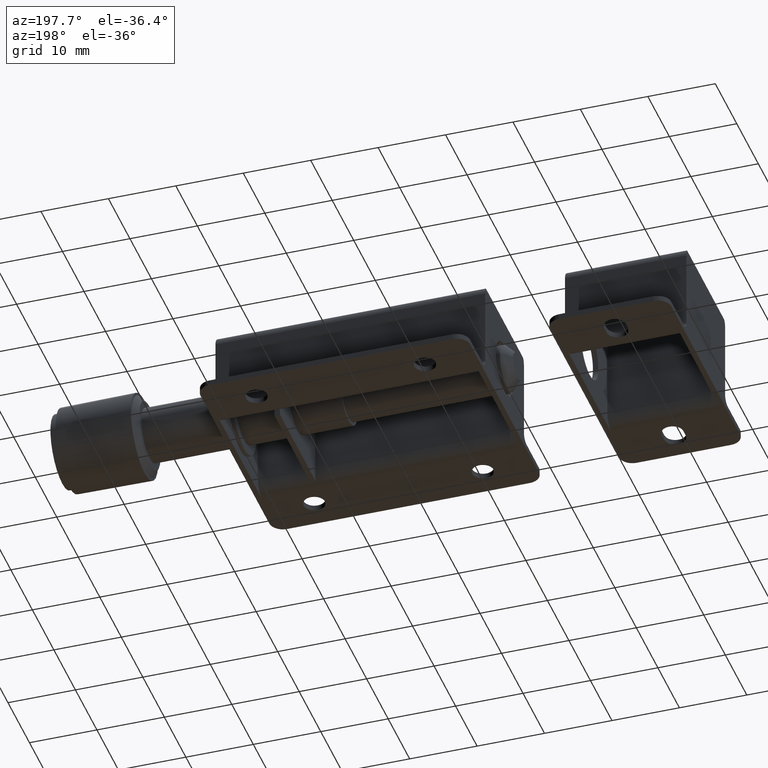
[diagram: clean part render]
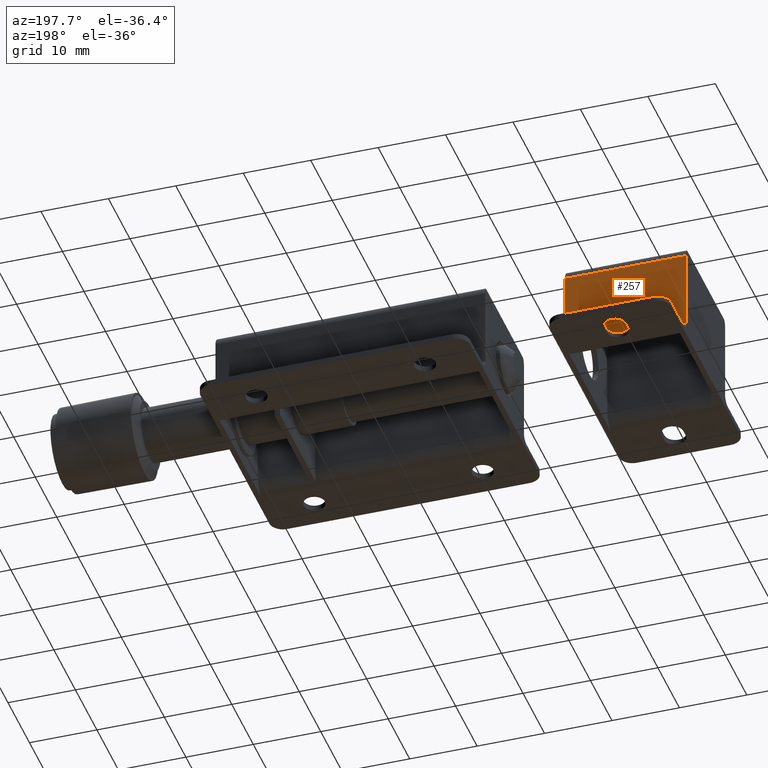
[diagram: same view with one face highlighted and labeled with its STEP entity id]
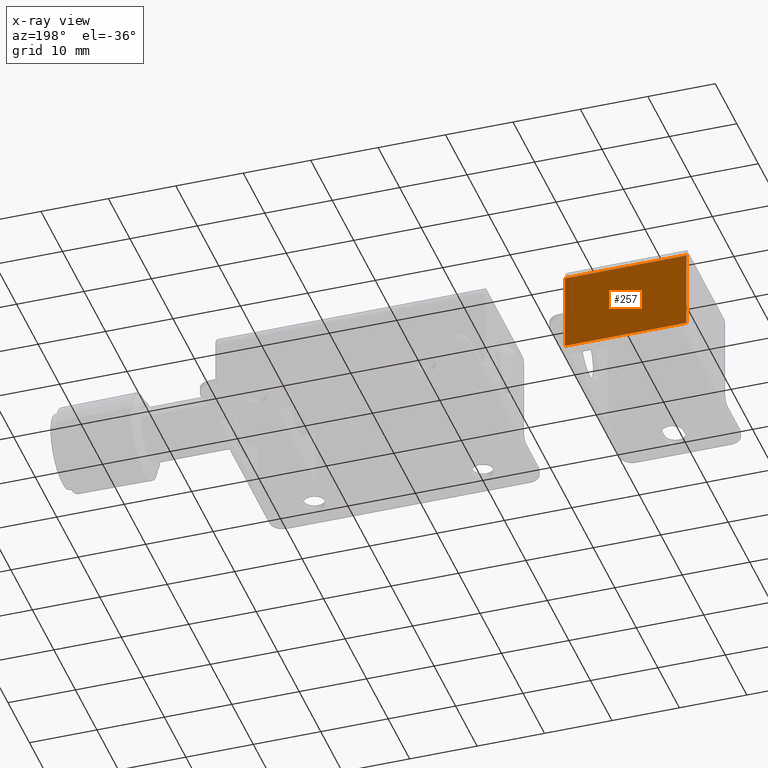
[diagram: x-ray of the same camera — body ghosted, the highlighted face saturated]
A machine part, auxiliary view. The second image highlights one B-rep face of the part: STEP entity #257.
The next image is the same camera in x-ray: the body ghosted, the highlighted face saturated — about 0% of this face is hidden behind the body in this view.
In plain terms, the highlighted planar face has unit normal (0, 1, 0).
Its self-contained STEP definition (entity closure, byte-faithful):
#257=ADVANCED_FACE('',(#1387),#1386,.T.);
#1386=PLANE('',#2258);
#1387=FACE_OUTER_BOUND('',#2259,.T.);
#2255=CARTESIAN_POINT('',(-1.80000000000E+00,2.24000000000E+01,1.50000000001E-02));
#2256=DIRECTION('',(-0.00000000000E+00,1.00000000000E+00,0.00000000000E+00));
#2257=DIRECTION('',(0.00000000000E+00,-0.00000000000E+00,1.00000000000E+00));
#2258=AXIS2_PLACEMENT_3D('',#2255,#2256,#2257);
#2259=EDGE_LOOP('',(#2929,#2930,#2931,#2932));
#2929=ORIENTED_EDGE('',*,*,#3289,.F.);
#2930=ORIENTED_EDGE('',*,*,#3263,.F.);
#2931=ORIENTED_EDGE('',*,*,#3303,.T.);
#2932=ORIENTED_EDGE('',*,*,#3328,.T.);
#3263=EDGE_CURVE('',#4891,#4863,#4898,.T.);
#3289=EDGE_CURVE('',#4863,#5076,#5077,.T.);
#3303=EDGE_CURVE('',#4891,#5161,#5168,.T.);
#3328=EDGE_CURVE('',#5161,#5076,#5336,.T.);
#4863=VERTEX_POINT('',#6512);
#4891=VERTEX_POINT('',#6543);
#4898=LINE('',#6548,#6549);
#5076=VERTEX_POINT('',#6672);
#5077=LINE('',#6673,#6674);
#5161=VERTEX_POINT('',#6721);
#5168=LINE('',#6726,#6727);
#5336=LINE('',#6827,#6828);
#6512=CARTESIAN_POINT('',(0.00000000000E+00,2.24000000000E+01,1.30500000000E+01));
#6543=CARTESIAN_POINT('',(1.80000000000E+01,2.24000000000E+01,1.30500000000E+01));
#6548=CARTESIAN_POINT('',(1.80000000000E+01,2.24000000000E+01,1.30500000000E+01));
#6549=VECTOR('',#6550,1.80000000000E+01);
#6550=DIRECTION('',(-1.00000000000E+00,0.00000000000E+00,0.00000000000E+00));
#6672=CARTESIAN_POINT('',(0.00000000000E+00,2.24000000000E+01,1.20000000000E+00));
#6673=CARTESIAN_POINT('',(0.00000000000E+00,2.24000000000E+01,1.30500000000E+01));
#6674=VECTOR('',#6675,1.18500000000E+01);
#6675=DIRECTION('',(0.00000000000E+00,0.00000000000E+00,-1.00000000000E+00));
#6721=CARTESIAN_POINT('',(1.80000000000E+01,2.24000000000E+01,1.20000000000E+00));
#6726=CARTESIAN_POINT('',(1.80000000000E+01,2.24000000000E+01,1.30500000000E+01));
#6727=VECTOR('',#6728,1.18500000000E+01);
#6728=DIRECTION('',(0.00000000000E+00,0.00000000000E+00,-1.00000000000E+00));
#6827=CARTESIAN_POINT('',(1.80000000000E+01,2.24000000000E+01,1.20000000000E+00));
#6828=VECTOR('',#6829,1.80000000000E+01);
#6829=DIRECTION('',(-1.00000000000E+00,0.00000000000E+00,0.00000000000E+00));